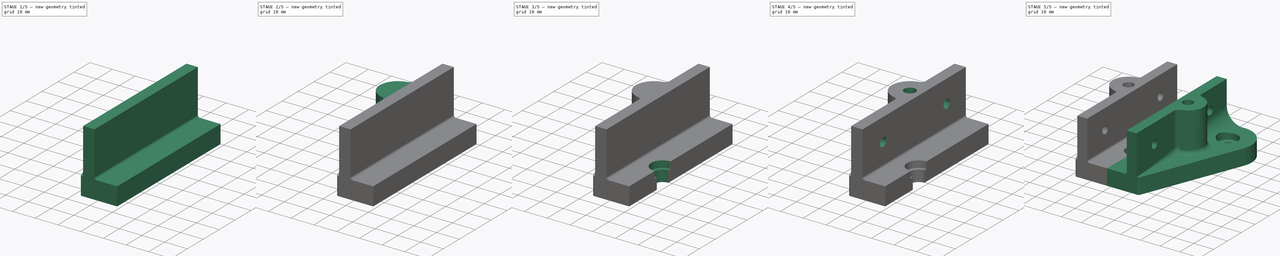
[diagram: build sequence overview — one tinted view per stage of 5, left to right]
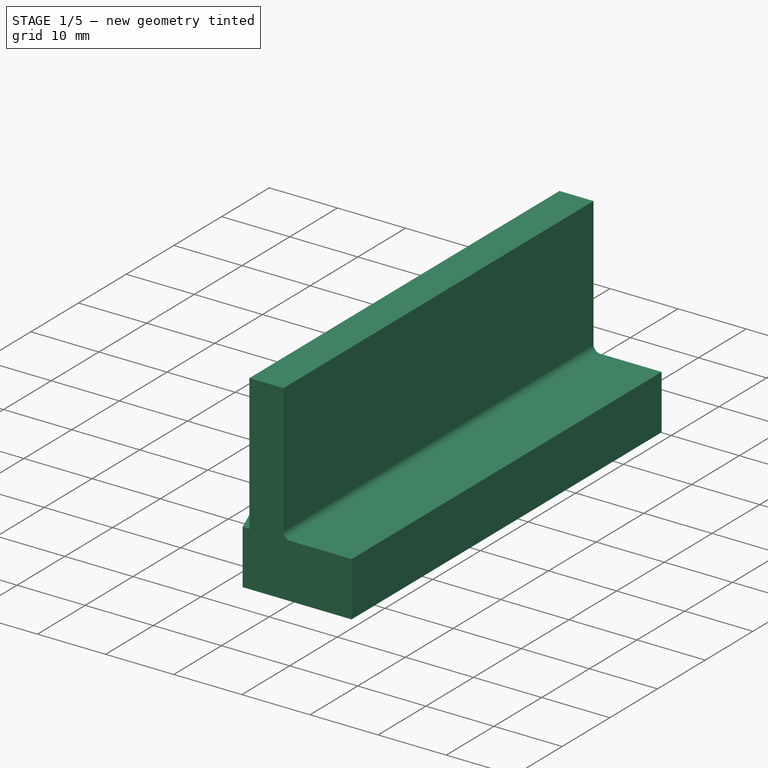
[diagram: stage 1 of 5 — iso view after this stage's code; geometry added in this stage tinted green]
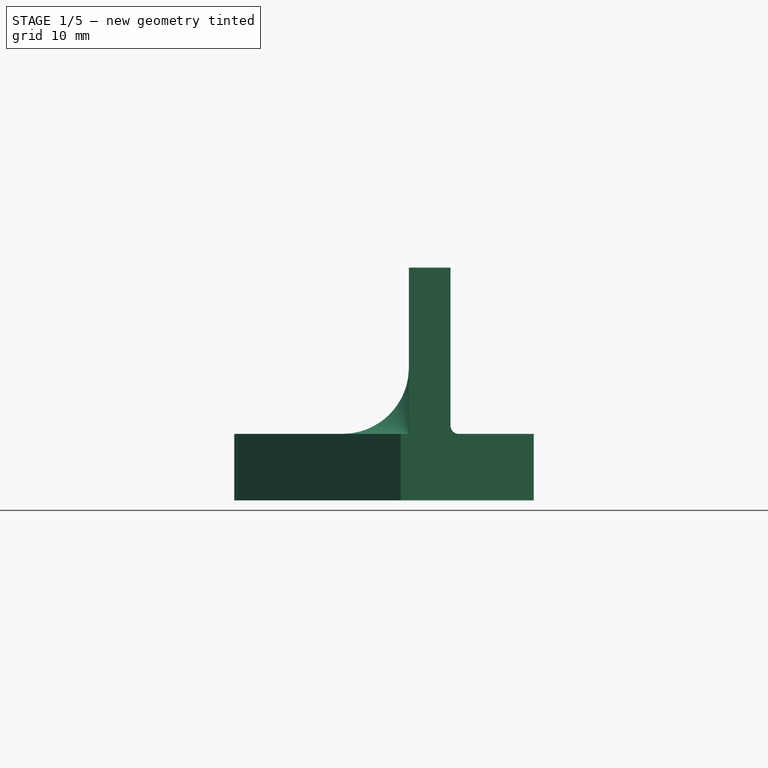
[diagram: stage 1 of 5 — front view after this stage's code; geometry added in this stage tinted green]
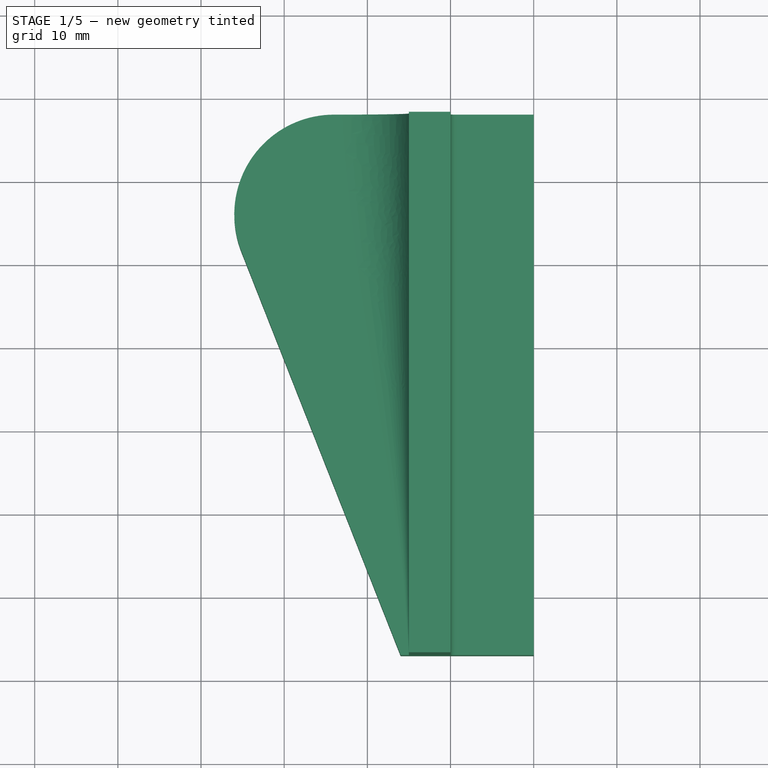
[diagram: stage 1 of 5 — top view after this stage's code; geometry added in this stage tinted green]
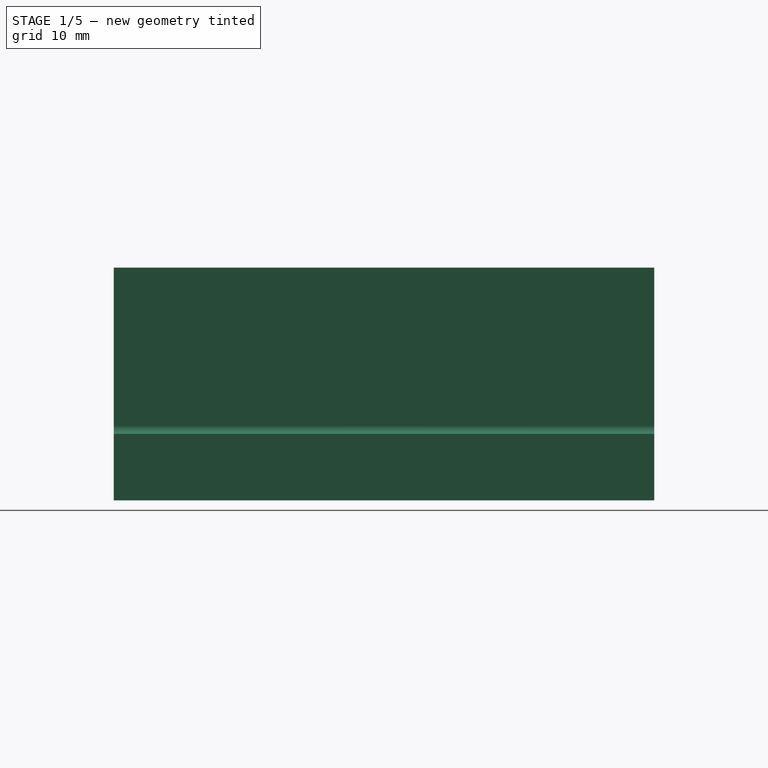
[diagram: stage 1 of 5 — right view after this stage's code; geometry added in this stage tinted green]
FCSTD DOCUMENT  (FreeCAD 0.16R4945 (Git))
Label: LaneNodes
License: All rights reserved
LicenseURL: http://en.wikipedia.org/wiki/All_rights_reserved
objects: Part::Feature×11, Sketcher::SketchObject×9, PartDesign::Pocket×6, PartDesign::Pad×3, Part::Fillet×3, App::DocumentObjectGroup×2, Part::Chamfer×1, Part::Mirroring×1, Part::MultiFuse×1
note: 44 computed .brp shape members not serialized (recipe doc carries the construction recipe); baked Part::Feature solids carry a one-line shape summary decoded from their .brp

FEATURE [Part::Feature] Pad001  label="V-Slot 20x20mm Length: 250"
  Placement = pos=(-135,-10,-1) rot=(0,1,0;1.5708rad)
  shape: bbox 250 x 20 x 20 mm, 101 faces (baked)
FEATURE [Part::Feature] Pad002  label="V-Slot 20x20mm Length: 250 001"
  Placement = pos=(-10,-37,28) rot=(-1,0,0;1.5708rad)
  shape: bbox 20 x 250 x 20 mm, 101 faces (baked)
FEATURE [Part::Feature] Part__Feature  label="Delrin Mini V Wheel"
  Placement = pos=(0,-16,-11) rot=(0,1,0;1.5708rad)
  shape: bbox 15.23 x 15.23 x 8.8 mm, 16 faces (baked)
FEATURE [Part::Feature] Part__Feature001  label="Delrin Mini V Wheel001"
  Placement = pos=(-24,16,-11) rot=(0,1,0;1.5708rad)
  shape: bbox 15.23 x 15.23 x 8.8 mm, 16 faces (baked)
FEATURE [Part::Feature] Part__Feature002  label="Delrin Mini V Wheel002"
  Placement = pos=(22,16,-11) rot=(0,1,0;1.5708rad)
  shape: bbox 15.23 x 15.23 x 8.8 mm, 16 faces (baked)
FEATURE [Part::Feature] Part__Feature003  label="Eccentric Spacer 6mm"
  Placement = pos=(0,-16,-0.5) rot=(-1,0,0;1.5708rad)
  shape: bbox 11.55 x 11.16 x 8.501 mm, 28 faces (baked)
FEATURE [Part::Feature] Part__Feature004  label="Aluminum Spacer 6mm"
  Placement = pos=(-24,16,-6.5) rot=(0,0,1;0rad)
  shape: bbox 10 x 10 x 6 mm, 14 faces (baked)
FEATURE [Part::Feature] Part__Feature005  label="Aluminum Spacer 6mm001"
  Placement = pos=(22,16,-6.5) rot=(0,0,1;0rad)
  shape: bbox 10 x 10 x 6 mm, 14 faces (baked)
FEATURE [Sketcher::SketchObject] Sketch  label="Base"
  sketch-geometry (5):
    g0: LineSegment StartX=-24 StartY=28 StartZ=0 EndX=0 EndY=28 EndZ=0
    g1: LineSegment StartX=0 StartY=28 StartZ=0 EndX=0 EndY=-37 EndZ=0
    g2: LineSegment StartX=0 StartY=-37 StartZ=0 EndX=-16 EndY=-37 EndZ=0
    g3: LineSegment StartX=-16 StartY=-37 StartZ=0 EndX=-35.1634 EndY=11.5979 EndZ=0
    g4: ArcOfCircle CenterX=-24 CenterY=16 CenterZ=0 NormalX=0 NormalY=0 NormalZ=1 Radius=12 StartAngle=1.5708 EndAngle=3.5172
  constraints (16):
    c: Horizontal(g0)
    c: Coincident(g0,g1)
    c: PointOnObject(g1,g-2)
    c: Vertical(g1)
    c: Coincident(g1,g2)
    c: Horizontal(g2)
    c: Coincident(g2,g3)
    c: Coincident(g4,g0)
    c: Coincident(g4,g3)
    c: Tangent(g4,g3)
    c: Tangent(g4,g0)
    c: DistanceX(g4) = -24
    c: DistanceY(g4) = 16
    c: DistanceY(g1) = -37
    c: DistanceX(g2) = -16
    c: Radius(g4) = 12
FEATURE [PartDesign::Pad] Pad  label="Base001"
  Length = 8
  Length2 = 100
  Sketch = -> Sketch
  Type = 0
FEATURE [Sketcher::SketchObject] Sketch003  label="ProfileHold"
  Placement = pos=(0,28,0) rot=(0,0.707107,0.707107;3.14159rad)
  Support = -> Pad [Face1]
  sketch-geometry (4):
    g0: LineSegment StartX=10 StartY=28 StartZ=0 EndX=15 EndY=28 EndZ=0
    g1: LineSegment StartX=15 StartY=28 StartZ=0 EndX=15 EndY=0 EndZ=0
    g2: LineSegment StartX=15 StartY=0 StartZ=0 EndX=10 EndY=0 EndZ=0
    g3: LineSegment StartX=10 StartY=0 StartZ=0 EndX=10 EndY=28 EndZ=0
  constraints (12):
    c: Coincident(g0,g1)
    c: Coincident(g1,g2)
    c: Coincident(g2,g3)
    c: Coincident(g3,g0)
    c: Horizontal(g0)
    c: Horizontal(g2)
    c: Vertical(g1)
    c: Vertical(g3)
    c: DistanceX(g0) = 10
    c: DistanceX(g0) = 5
    c: PointOnObject(g2,g-1)
    c: DistanceY(g3) = 28
FEATURE [PartDesign::Pad] Pad003  label="ProfileHold001"
  Length = 65
  Length2 = 100
  Reversed = true
  Sketch = -> Sketch003
  Type = 3
  UpToFace = -> Pad [Face3]
FEATURE [Part::Fillet] Fillet
  Base = -> Pad003
  Edges = 2 edges: [Edge13 r1=0 r2=8,Edge36 r=1]
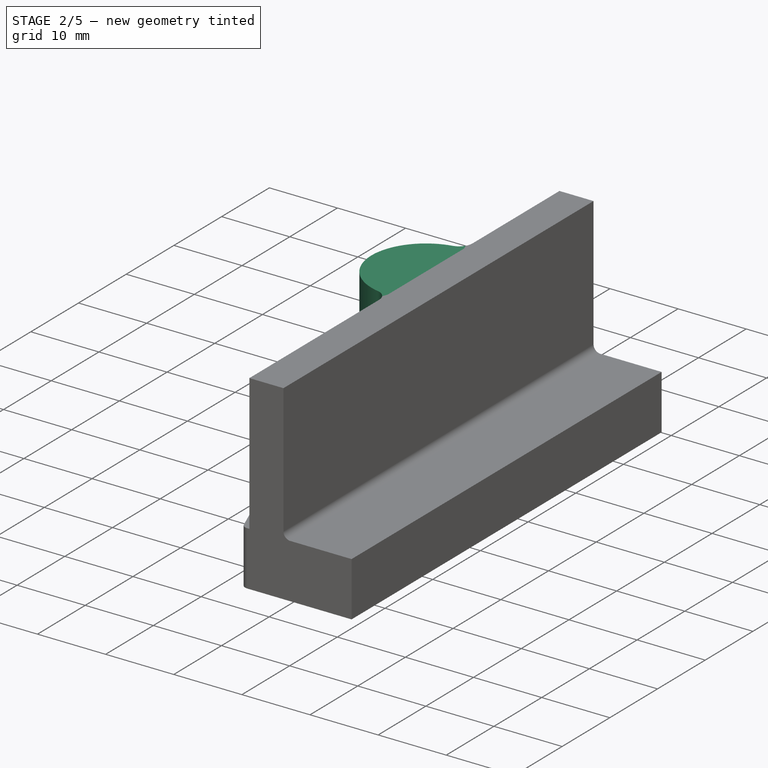
[diagram: stage 2 of 5 — iso view after this stage's code; geometry added in this stage tinted green]
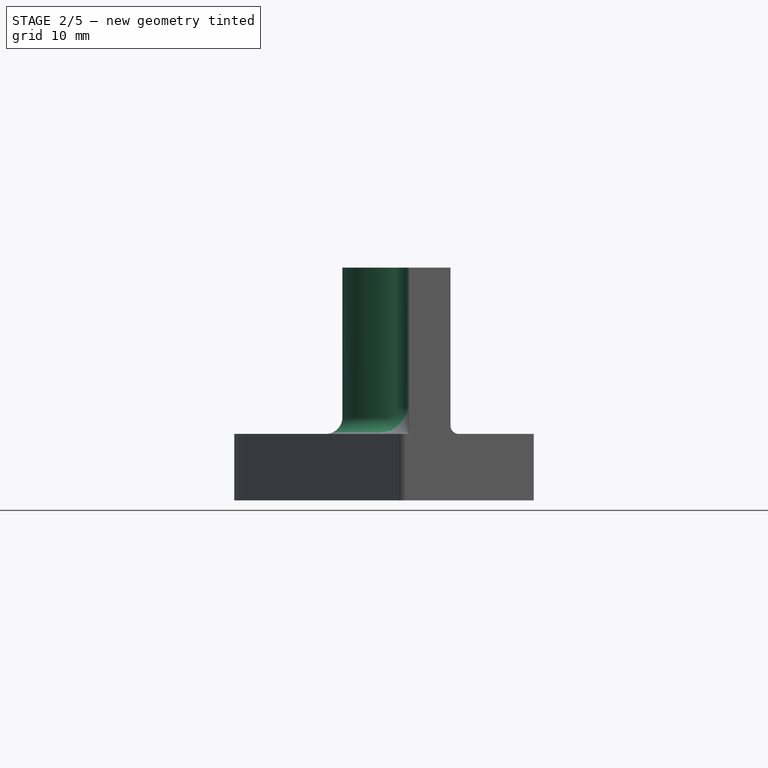
[diagram: stage 2 of 5 — front view after this stage's code; geometry added in this stage tinted green]
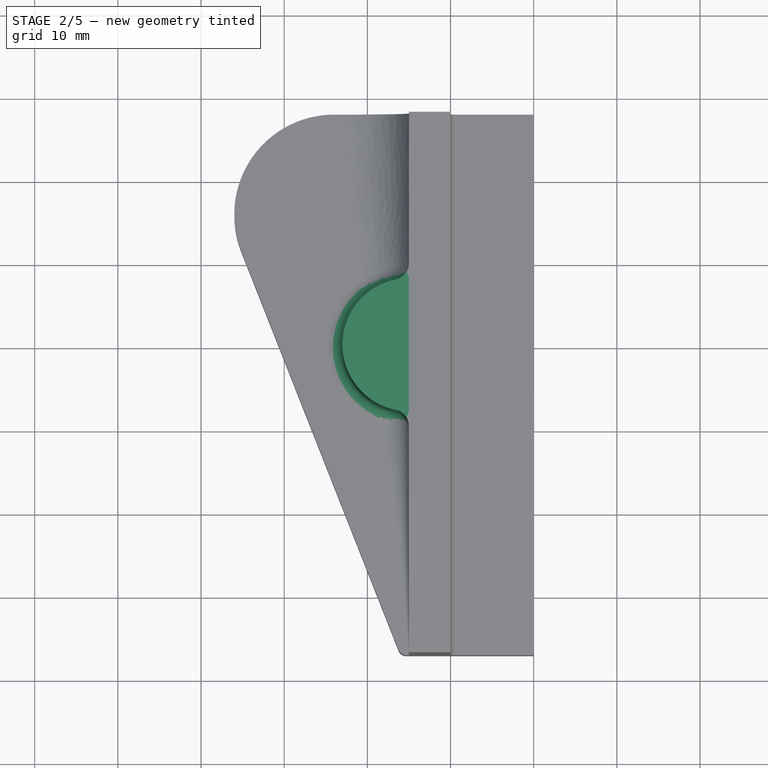
[diagram: stage 2 of 5 — top view after this stage's code; geometry added in this stage tinted green]
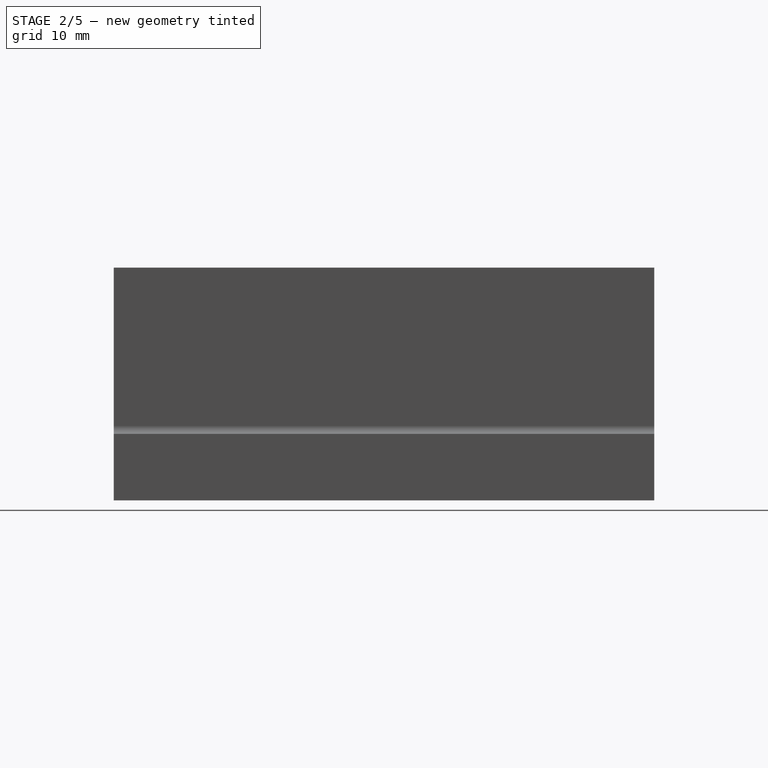
[diagram: stage 2 of 5 — right view after this stage's code; geometry added in this stage tinted green]
FEATURE [Part::Fillet] Fillet001
  Base = -> Fillet
  Edges = 1 edges r=1: [Edge25]
FEATURE [Sketcher::SketchObject] Sketch004  label="IdlerHold"
  Placement = pos=(0,0,28) rot=(0,0,1;0rad)
  Support = -> Fillet001 [Face16]
  sketch-geometry (2):
    g0: ArcOfCircle CenterX=-15 CenterY=0 CenterZ=0 NormalX=0 NormalY=0 NormalZ=1 Radius=8 StartAngle=0.895665 EndAngle=5.38752
    g1: LineSegment StartX=-10 StartY=6.245 StartZ=0 EndX=-10 EndY=-6.245 EndZ=0
  constraints (7):
    c: PointOnObject(g0,g-1)
    c: Vertical(g1)
    c: Coincident(g1,g0)
    c: Coincident(g1,g0)
    c: DistanceX(g0) = -10
    c: DistanceX(g0) = -15
    c: Radius(g0) = 8
FEATURE [PartDesign::Pad] Pad004  label="IdlerHold001"
  Length = 10
  Length2 = 100
  Reversed = true
  Sketch = -> Sketch004
  Type = 3
  UpToFace = -> Fillet001 [Face8]
FEATURE [Part::Fillet] Fillet002
  Base = -> Pad004
  Edges = 1 edges r=2: [Edge37]
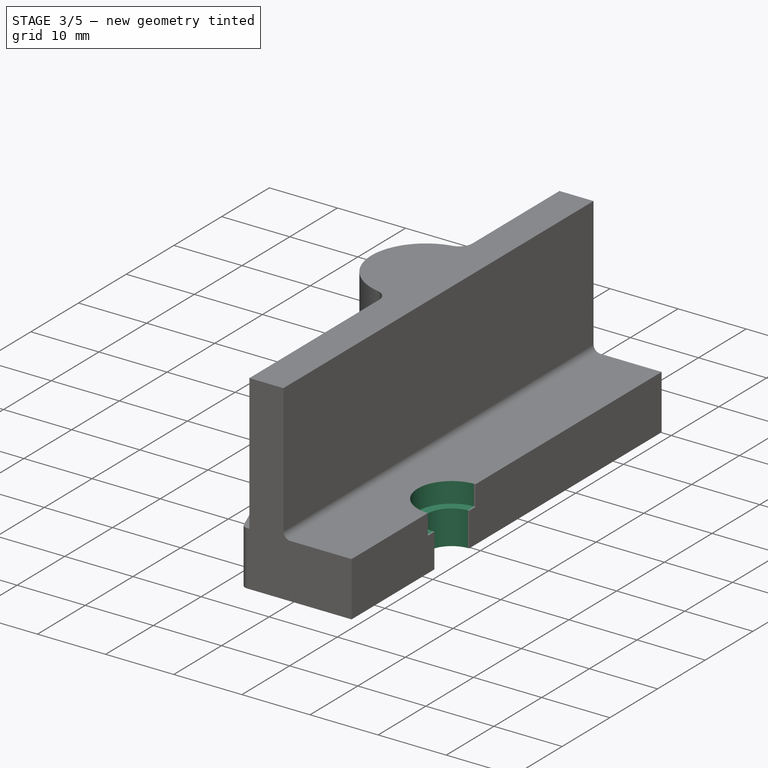
[diagram: stage 3 of 5 — iso view after this stage's code; geometry added in this stage tinted green]
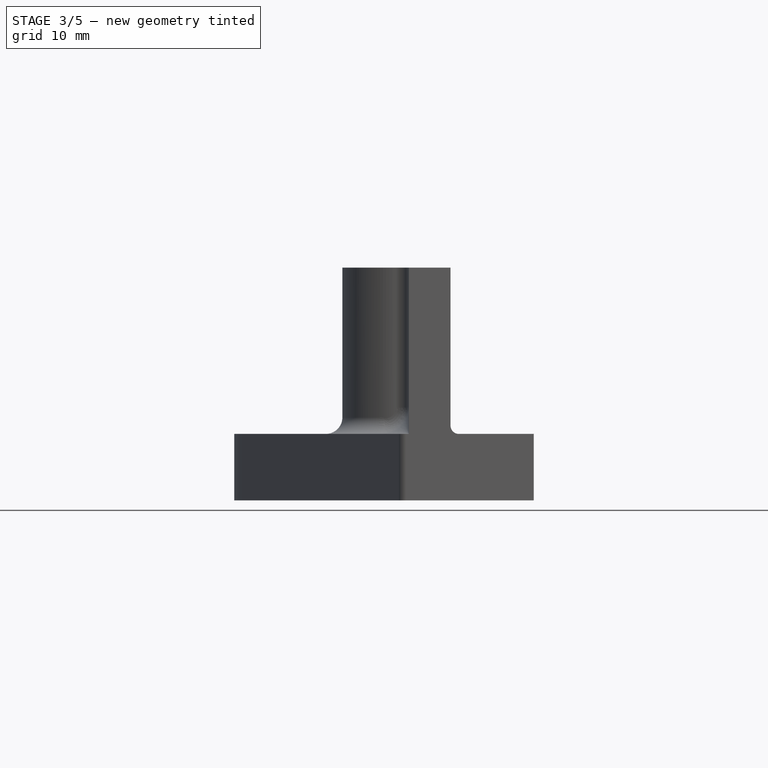
[diagram: stage 3 of 5 — front view after this stage's code; geometry added in this stage tinted green]
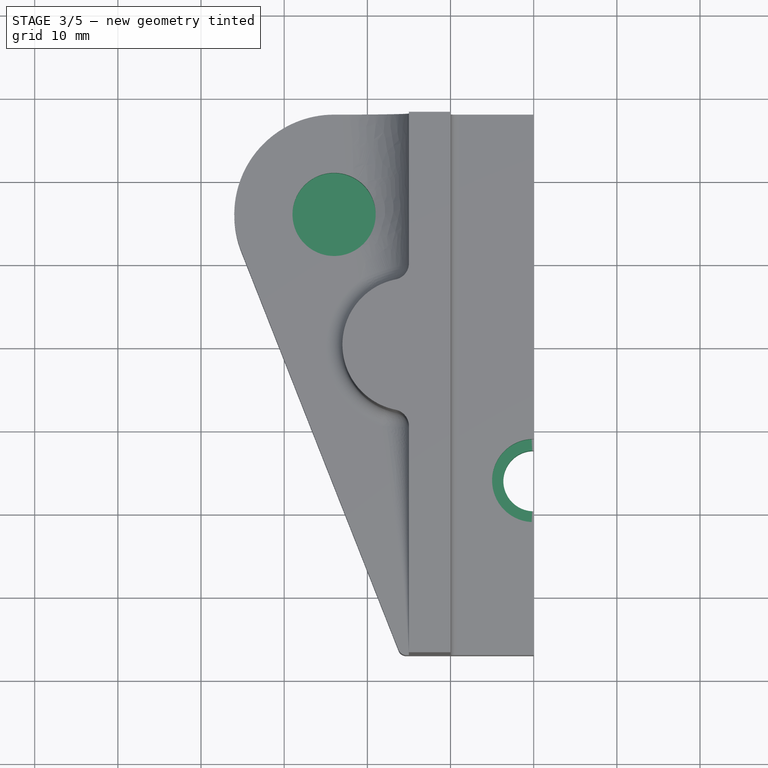
[diagram: stage 3 of 5 — top view after this stage's code; geometry added in this stage tinted green]
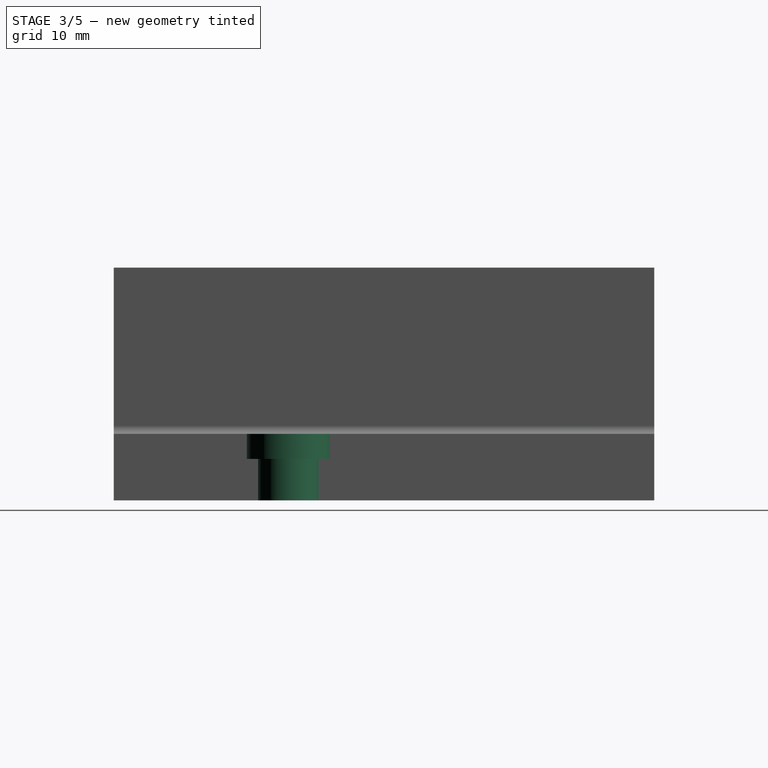
[diagram: stage 3 of 5 — right view after this stage's code; geometry added in this stage tinted green]
FEATURE [Sketcher::SketchObject] Sketch005  label="PreloadBoltHead"
  Placement = pos=(0,0,8) rot=(0,0,1;0rad)
  Support = -> Fillet002 [Face35]
  sketch-geometry (1):
    g0: Circle CenterX=0 CenterY=-16 CenterZ=0 NormalX=0 NormalY=0 NormalZ=1 Radius=5
  constraints (3):
    c: PointOnObject(g0,g-2)
    c: DistanceY(g0) = -16
    c: Radius(g0) = 5
FEATURE [PartDesign::Pocket] Pocket  label="PreloadBoltHead001"
  Length = 3
  Sketch = -> Sketch005
  Type = 0
FEATURE [Sketcher::SketchObject] Sketch006  label="EccentricHole"
  Placement = pos=(0,0,5) rot=(0,0,1;0rad)
  Support = -> Pocket [Face41]
  sketch-geometry (1):
    g0: Circle CenterX=0 CenterY=-16 CenterZ=0 NormalX=0 NormalY=0 NormalZ=1 Radius=3.65
  constraints (3):
    c: PointOnObject(g0,g-2)
    c: DistanceY(g0) = -16
    c: Radius(g0) = 3.65
FEATURE [PartDesign::Pocket] Pocket001  label="EccentricHole001"
  Length = 5
  Sketch = -> Sketch006
  Type = 1
FEATURE [Sketcher::SketchObject] Sketch002  label="GuideBoltHead"
  Placement = pos=(0,0,28) rot=(0,0,1;0rad)
  Support = -> Pocket001 [Face21]
  sketch-geometry (1):
    g0: Circle CenterX=-24 CenterY=16 CenterZ=0 NormalX=0 NormalY=0 NormalZ=1 Radius=5
  constraints (3):
    c: DistanceX(g0) = -24
    c: DistanceY(g0) = 16
    c: Radius(g0) = 5
FEATURE [PartDesign::Pocket] Pocket002  label="GuideBoltHead001"
  Length = 23
  Sketch = -> Sketch002
  Type = 0
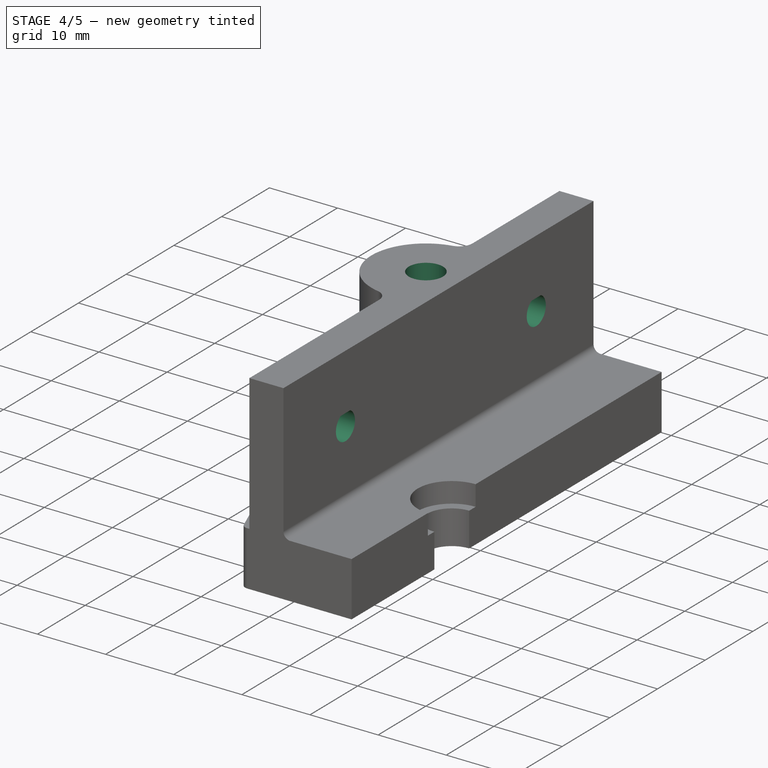
[diagram: stage 4 of 5 — iso view after this stage's code; geometry added in this stage tinted green]
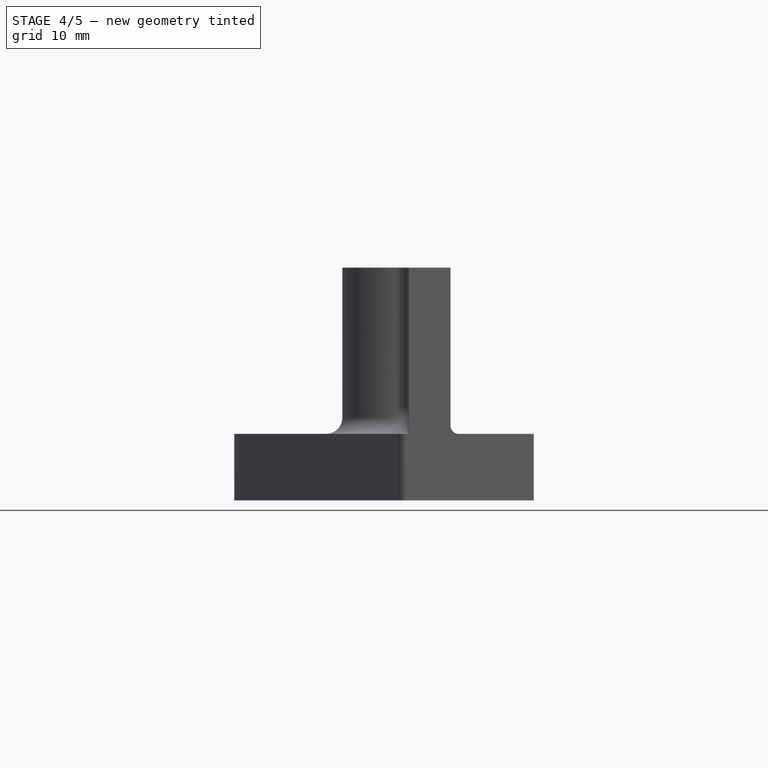
[diagram: stage 4 of 5 — front view after this stage's code; geometry added in this stage tinted green]
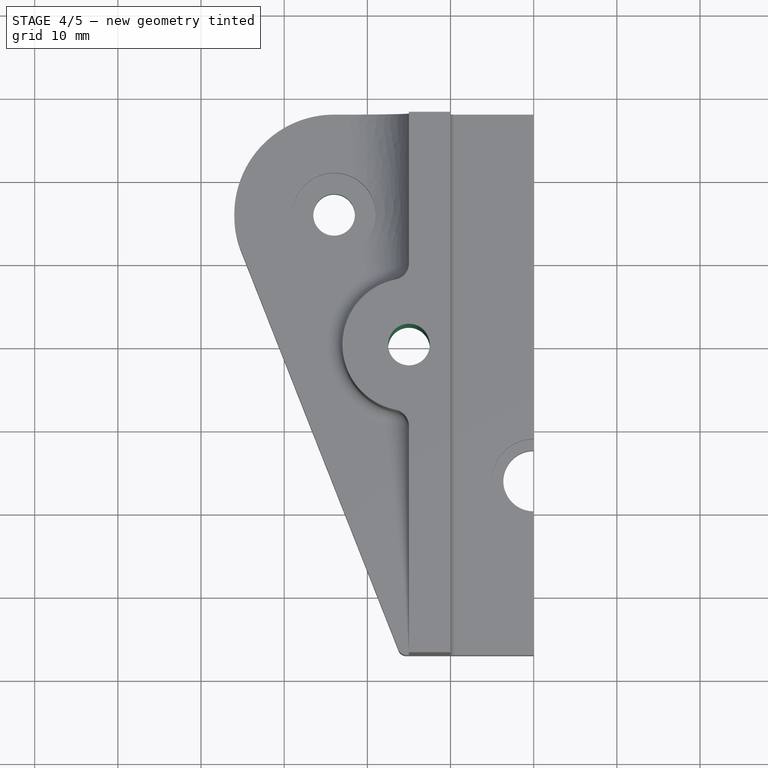
[diagram: stage 4 of 5 — top view after this stage's code; geometry added in this stage tinted green]
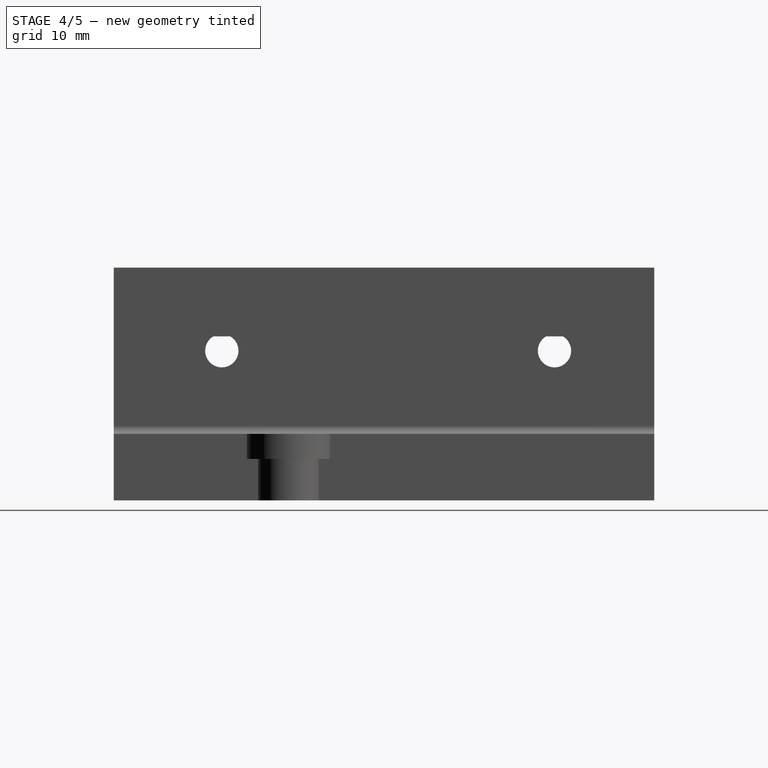
[diagram: stage 4 of 5 — right view after this stage's code; geometry added in this stage tinted green]
FEATURE [Sketcher::SketchObject] Sketch001  label="GuideBolt"
  Placement = pos=(0,0,5) rot=(0,0,1;0rad)
  Support = -> Pocket002 [Face21]
  sketch-geometry (1):
    g0: Circle CenterX=-24 CenterY=16 CenterZ=0 NormalX=0 NormalY=0 NormalZ=1 Radius=2.5
  constraints (3):
    c: DistanceX(g0) = -24
    c: DistanceY(g0) = 16
    c: Radius(g0) = 2.5
FEATURE [PartDesign::Pocket] Pocket003  label="GuideBolt001"
  Length = 5
  Sketch = -> Sketch001
  Type = 1
FEATURE [Sketcher::SketchObject] Sketch007  label="ProfileBolts"
  Placement = pos=(-15,0,0) rot=(0.57735,-0.57735,-0.57735;2.0944rad)
  Support = -> Pocket003 [Face15]
  sketch-geometry (5):
    g0: ArcOfCircle CenterX=-16 CenterY=18 CenterZ=0 NormalX=0 NormalY=0 NormalZ=1 Radius=2 StartAngle=2.0944 EndAngle=7.33038
    g1: ArcOfCircle CenterX=24 CenterY=18 CenterZ=0 NormalX=0 NormalY=0 NormalZ=1 Radius=2 StartAngle=2.0944 EndAngle=7.33038
    g2: LineSegment StartX=-17 StartY=19.7321 StartZ=0 EndX=-15 EndY=19.7321 EndZ=0
    g3: LineSegment StartX=23 StartY=19.7321 StartZ=0 EndX=25 EndY=19.7321 EndZ=0
    g4: LineSegment [constr] StartX=-16 StartY=18 StartZ=0 EndX=24 EndY=18 EndZ=0
  constraints (16):
    c: Horizontal(g3)
    c: Horizontal(g2)
    c: Coincident(g1,g3)
    c: Coincident(g3,g1)
    c: Coincident(g2,g0)
    c: Coincident(g0,g2)
    c: Horizontal(g4)
    c: Coincident(g4,g0)
    c: Coincident(g4,g1)
    c: PointOnObject(g0,g3)
    c: Equal(g2,g3)
    c: DistanceY(g0) = 18
    c: Radius(g1) = 2
    c: DistanceX(g3) = 2
    c: DistanceX(g0) = -16
    c: DistanceX(g1) = 24
FEATURE [PartDesign::Pocket] Pocket004  label="ProfileBolts001"
  Length = 5
  Sketch = -> Sketch007
  Type = 1
FEATURE [Part::Feature] Part__Feature006  label="Smooth Idler Pulley Wheel"
  Placement = pos=(-15,0,35) rot=(0,1,0;1.5708rad)
  shape: bbox 22 x 22 x 12.7 mm, 18 faces (baked)
FEATURE [Sketcher::SketchObject] Sketch008  label="IdlerBolt"
  Placement = pos=(0,0,28) rot=(0,0,1;0rad)
  Support = -> Pocket004 [Face39]
  sketch-geometry (1):
    g0: Circle CenterX=-15 CenterY=0 CenterZ=0 NormalX=0 NormalY=0 NormalZ=1 Radius=2.5
  constraints (3):
    c: PointOnObject(g0,g-1)
    c: Radius(g0) = 2.5
    c: DistanceX(g0) = -15
FEATURE [PartDesign::Pocket] Pocket005  label="IdlerBolt001"
  Length = 5
  Sketch = -> Sketch008
  Type = 1
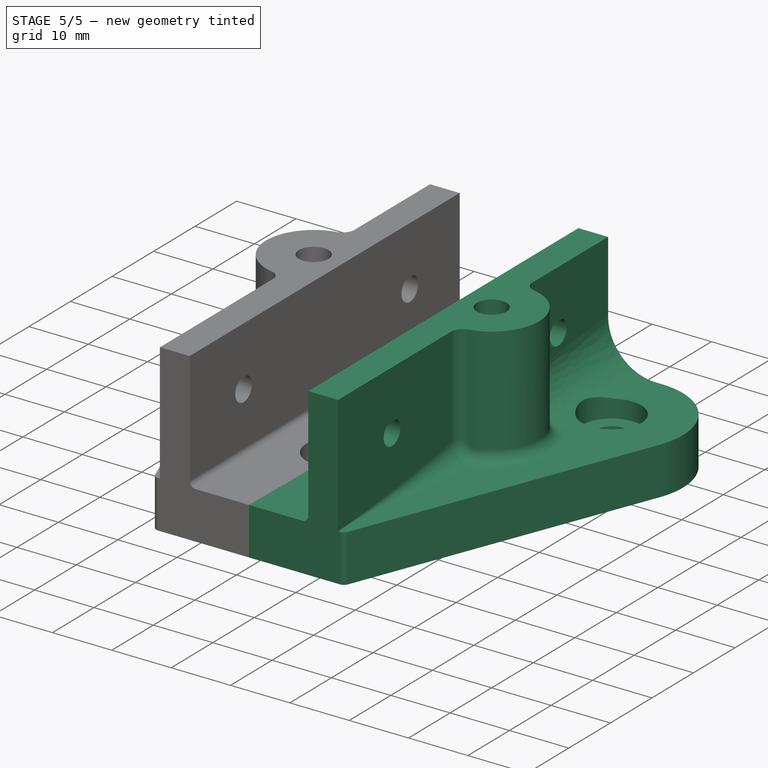
[diagram: stage 5 of 5 — iso view after this stage's code; geometry added in this stage tinted green]
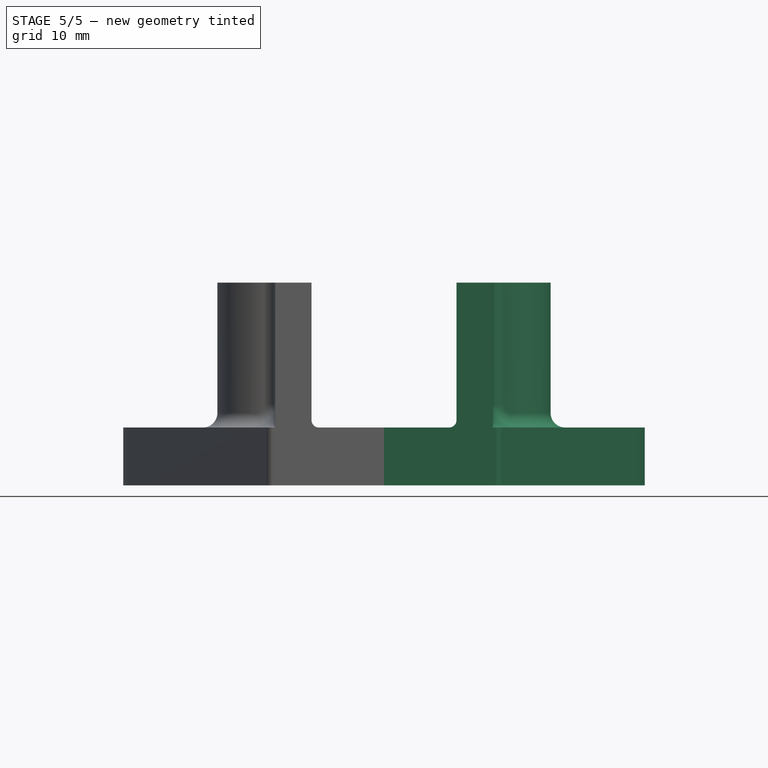
[diagram: stage 5 of 5 — front view after this stage's code; geometry added in this stage tinted green]
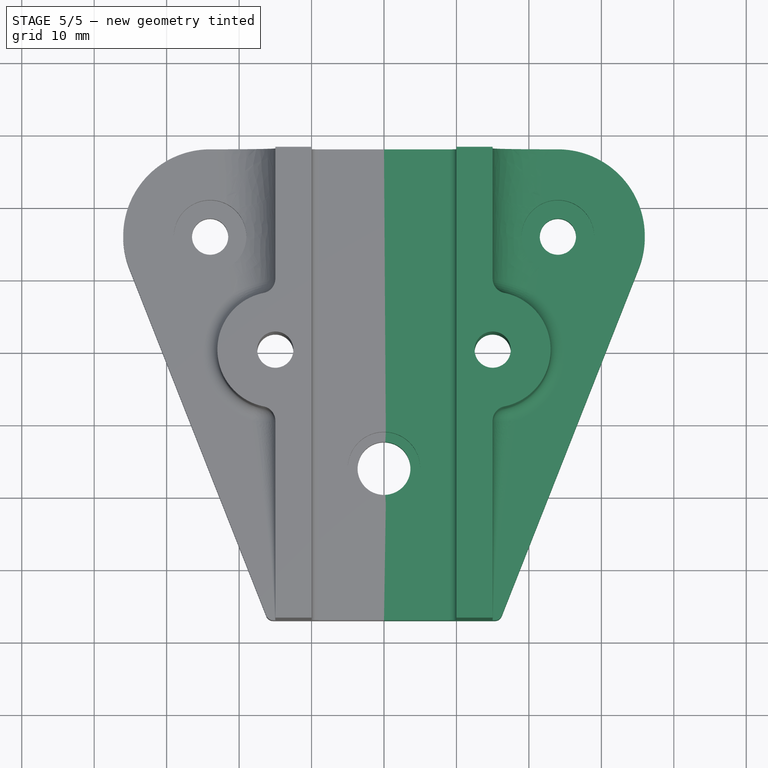
[diagram: stage 5 of 5 — top view after this stage's code; geometry added in this stage tinted green]
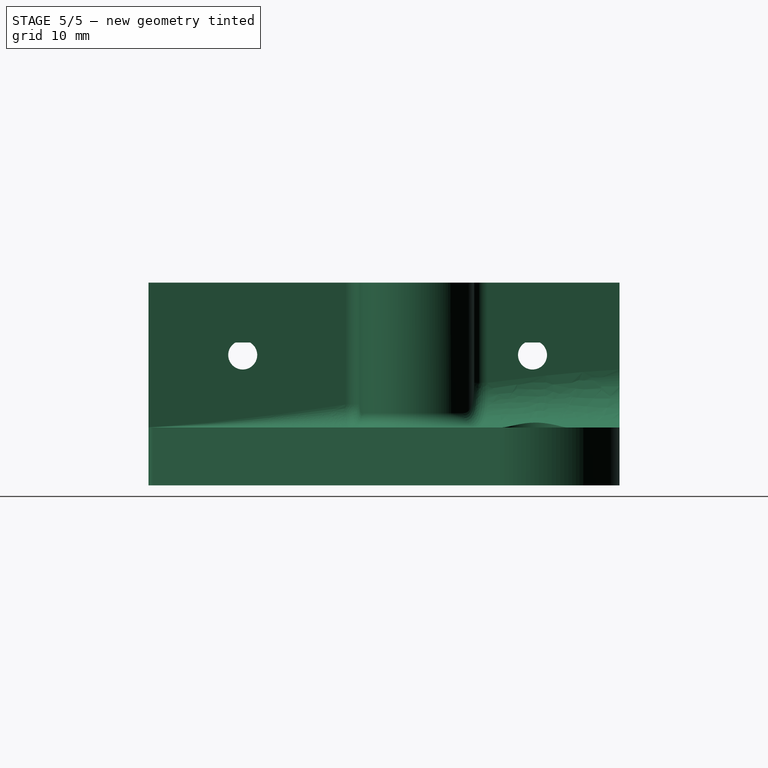
[diagram: stage 5 of 5 — right view after this stage's code; geometry added in this stage tinted green]
FEATURE [Part::Chamfer] Chamfer  label="IdlerBoltHead"
  Base = -> Pocket005
  Edges = 3 edges r=3: [Edge89,Edge114,Edge115]
FEATURE [Part::Mirroring] Part__Mirroring  label="IdlerBoltHead (Mirror #1)"
  Base = (0,0,0)
  Normal = (1,0,0)
  Source = -> Chamfer
FEATURE [Part::MultiFuse] Fusion  label="Mirror"
  Shapes = -> [Part__Mirroring,Chamfer]
FEATURE [Part::Feature] Fusion001  label="LaneNode"
  shape: bbox 72 x 72.96 x 28 mm, 110 faces (baked)
FEATURE [Part::Feature] Part__Feature007  label="Smooth Idler Pulley Wheel001"
  Placement = pos=(15,0,35) rot=(0,1,0;1.5708rad)
  shape: bbox 22 x 22 x 12.7 mm, 18 faces (baked)
FEATURE [App::DocumentObjectGroup] Group  label="Reference"
  Group = -> [Pad001,Part__Feature001,Pad002,Part__Feature005,Part__Feature003,Part__Feature004,Part__Feature,Part__Feature002,Part__Feature006,Part__Feature007]
FEATURE [App::DocumentObjectGroup] Group001  label="src"
  Group = -> [Pad,Fillet001,Fillet002,Pocket,Pocket001,Pocket002,Pocket003,Pocket004,Fusion]
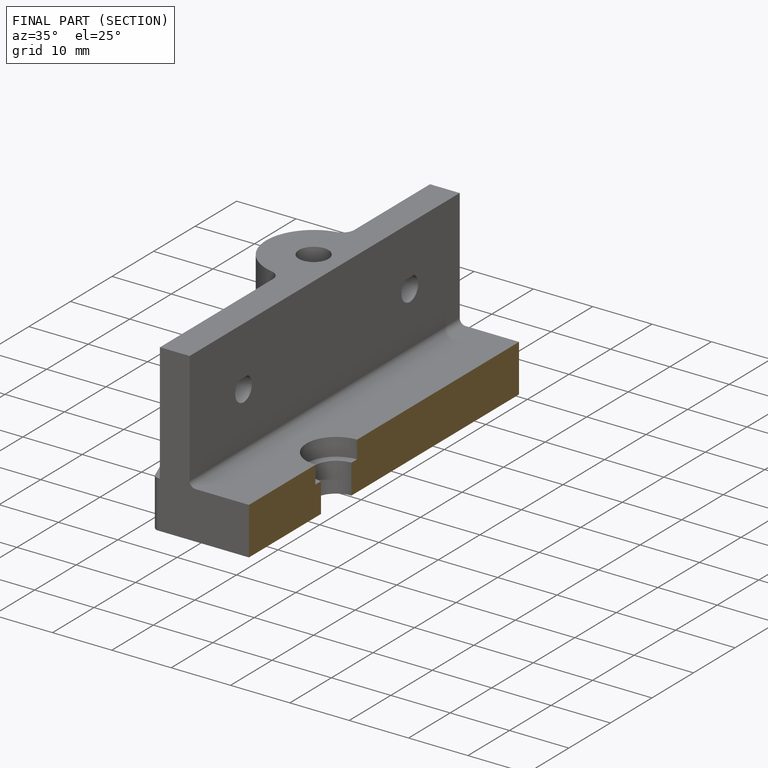
[diagram: finished part — half-section view (interior)]
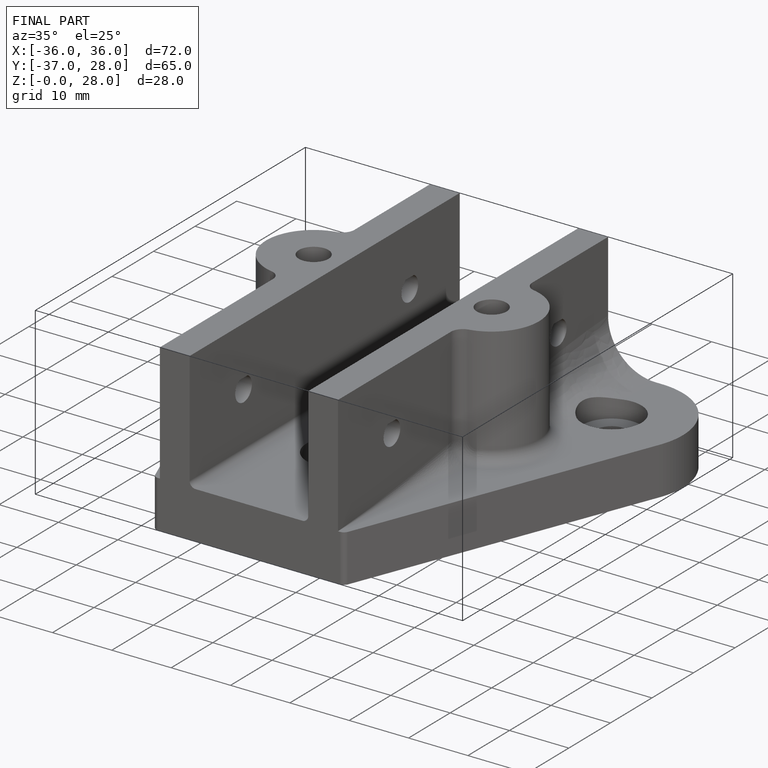
[diagram: finished part — iso view with bounding-box wireframe]
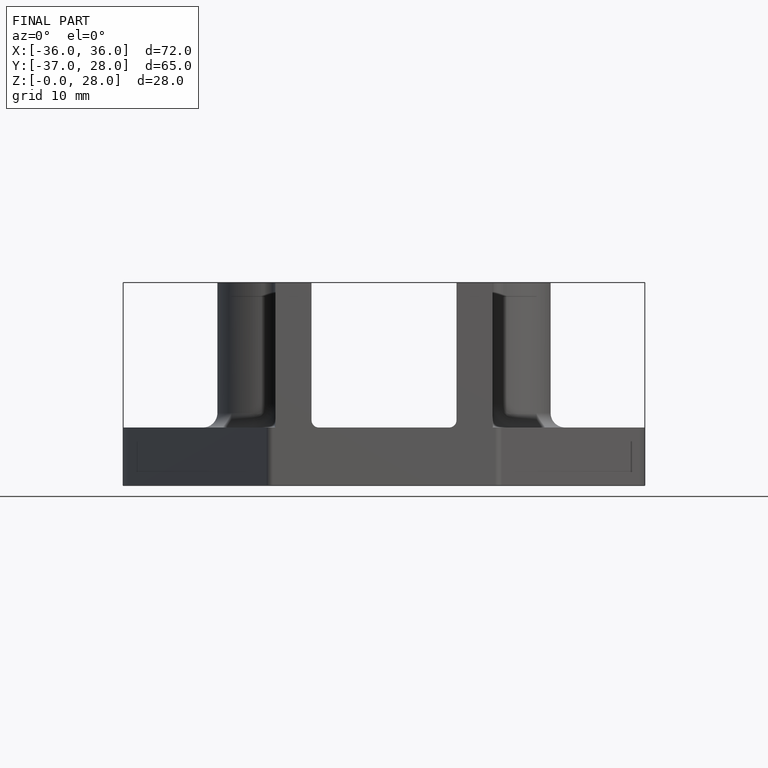
[diagram: finished part — front view with bounding-box wireframe]
